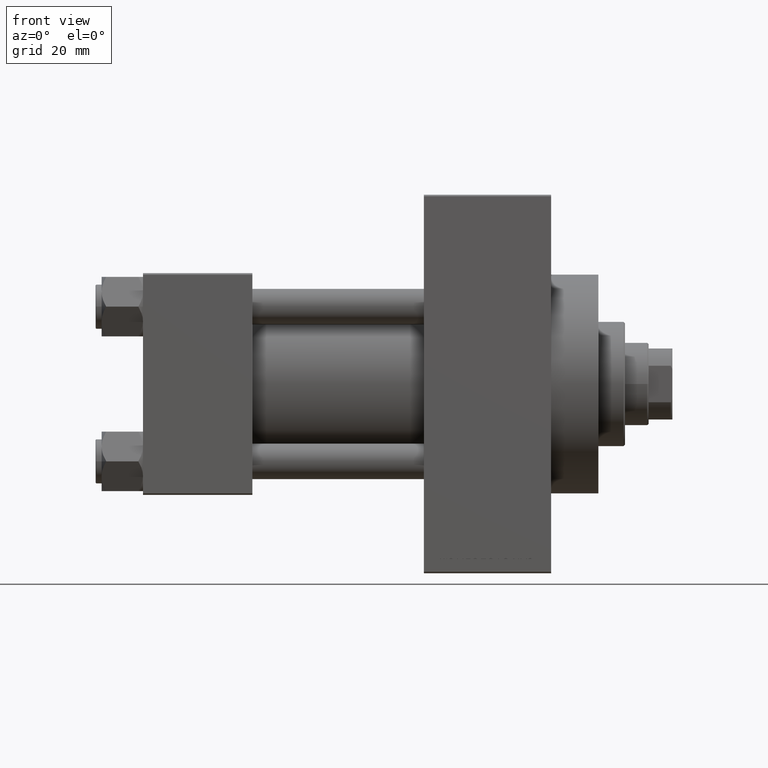
[diagram: clean part render]
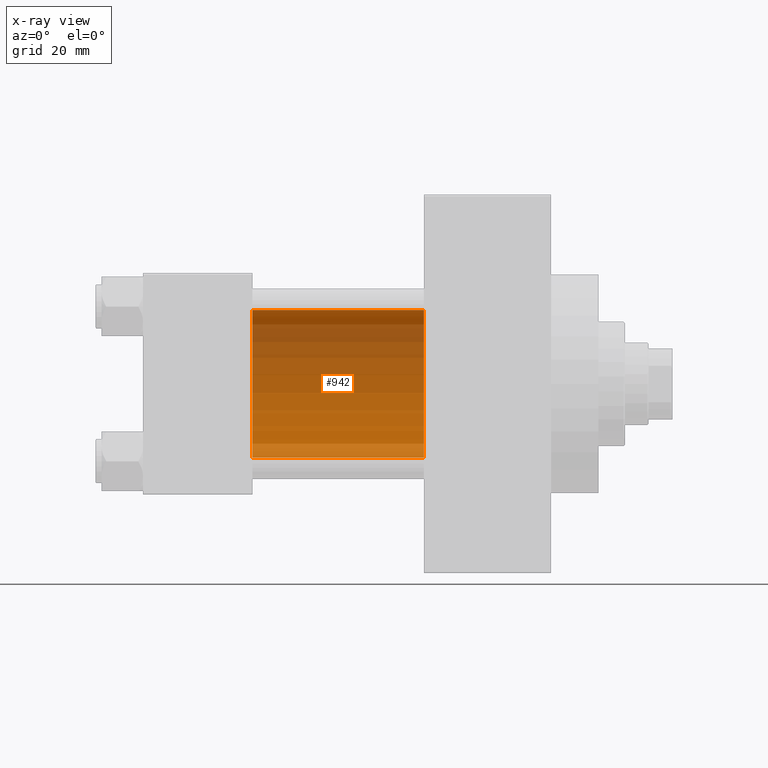
[diagram: x-ray — body ghosted, one internal face saturated and labeled with its STEP entity id]
A machine part, front view, then the same camera in x-ray: the body is ghosted and one INTERNAL B-rep face — a face not visible from any outside direction — is saturated and labeled: STEP entity #942.
In plain terms, the highlighted cylindrical surface (partial cylindrical patch) has radius 25 mm, axis along (-1, -0, -0).
Its self-contained STEP definition (entity closure, byte-faithful):
#109 = CIRCLE ( 'NONE', #5654, 25.00000000000000000 ) ;
#942 = ADVANCED_FACE ( 'NONE', ( #37443 ), #22818, .F. ) ;
#3665 = DIRECTION ( 'NONE',  ( -1.000000000000000000, -0.000000000000000000, -0.000000000000000000 ) ) ;
#5654 = AXIS2_PLACEMENT_3D ( 'NONE', #40783, #25184, #21723 ) ;
#5863 = DIRECTION ( 'NONE',  ( -1.000000000000000000, -0.000000000000000000, -0.000000000000000000 ) ) ;
#6097 = CARTESIAN_POINT ( 'NONE',  ( 95.00000000000000000, 4.595317839031718093E-16, -25.00000000000000000 ) ) ;
#6448 = CARTESIAN_POINT ( 'NONE',  ( 37.00000000000000000, -2.602085213965210642E-15, 25.00000000000000000 ) ) ;
#9543 = EDGE_CURVE ( 'NONE', #14403, #27501, #20870, .T. ) ;
#10051 = LINE ( 'NONE', #6097, #20579 ) ;
#14147 = ORIENTED_EDGE ( 'NONE', *, *, #22468, .F. ) ;
#14403 = VERTEX_POINT ( 'NONE', #14789 ) ;
#14789 = CARTESIAN_POINT ( 'NONE',  ( 95.00000000000000000, 4.595317839031718093E-16, -25.00000000000000000 ) ) ;
#14875 = ORIENTED_EDGE ( 'NONE', *, *, #38993, .F. ) ;
#15407 = DIRECTION ( 'NONE',  ( -1.000000000000000000, -0.000000000000000000, -0.000000000000000000 ) ) ;
#17092 = CARTESIAN_POINT ( 'NONE',  ( 95.00000000000000000, -2.602085213965210642E-15, 25.00000000000000000 ) ) ;
#18881 = CARTESIAN_POINT ( 'NONE',  ( 95.00000000000000000, -2.602085213965210642E-15, 0.000000000000000000 ) ) ;
#19816 = EDGE_CURVE ( 'NONE', #27501, #22243, #37781, .T. ) ;
#20579 = VECTOR ( 'NONE', #5863, 1000.000000000000000 ) ;
#20870 = CIRCLE ( 'NONE', #33508, 25.00000000000000000 ) ;
#21723 = DIRECTION ( 'NONE',  ( 0.000000000000000000, 0.000000000000000000, -1.000000000000000000 ) ) ;
#22243 = VERTEX_POINT ( 'NONE', #6448 ) ;
#22468 = EDGE_CURVE ( 'NONE', #39354, #22243, #109, .T. ) ;
#22818 = CYLINDRICAL_SURFACE ( 'NONE', #34774, 25.00000000000000000 ) ;
#25184 = DIRECTION ( 'NONE',  ( 1.000000000000000000, 0.000000000000000000, 0.000000000000000000 ) ) ;
#27501 = VERTEX_POINT ( 'NONE', #17092 ) ;
#27773 = EDGE_LOOP ( 'NONE', ( #14875, #39584, #45610, #14147 ) ) ;
#29997 = VECTOR ( 'NONE', #3665, 1000.000000000000000 ) ;
#33508 = AXIS2_PLACEMENT_3D ( 'NONE', #46323, #35661, #46559 ) ;
#34774 = AXIS2_PLACEMENT_3D ( 'NONE', #18881, #15407, #45833 ) ;
#35661 = DIRECTION ( 'NONE',  ( 1.000000000000000000, 0.000000000000000000, 0.000000000000000000 ) ) ;
#37443 = FACE_OUTER_BOUND ( 'NONE', #27773, .T. ) ;
#37781 = LINE ( 'NONE', #41270, #29997 ) ;
#38993 = EDGE_CURVE ( 'NONE', #14403, #39354, #10051, .T. ) ;
#39354 = VERTEX_POINT ( 'NONE', #48356 ) ;
#39584 = ORIENTED_EDGE ( 'NONE', *, *, #9543, .T. ) ;
#40783 = CARTESIAN_POINT ( 'NONE',  ( 37.00000000000000000, -2.602085213965210642E-15, 0.000000000000000000 ) ) ;
#41270 = CARTESIAN_POINT ( 'NONE',  ( 95.00000000000000000, -2.602085213965210642E-15, 25.00000000000000000 ) ) ;
#45610 = ORIENTED_EDGE ( 'NONE', *, *, #19816, .T. ) ;
#45833 = DIRECTION ( 'NONE',  ( 0.000000000000000000, 0.000000000000000000, 1.000000000000000000 ) ) ;
#46323 = CARTESIAN_POINT ( 'NONE',  ( 95.00000000000000000, -2.602085213965210642E-15, 0.000000000000000000 ) ) ;
#46559 = DIRECTION ( 'NONE',  ( 0.000000000000000000, 0.000000000000000000, -1.000000000000000000 ) ) ;
#48356 = CARTESIAN_POINT ( 'NONE',  ( 37.00000000000000000, 4.595317839031718093E-16, -25.00000000000000000 ) ) ;